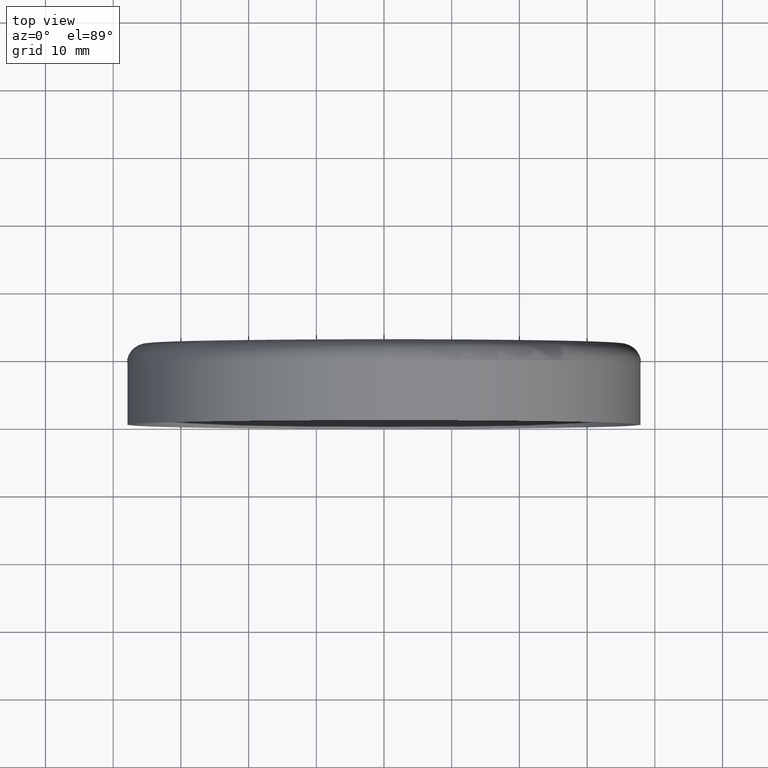
[diagram: clean part render]
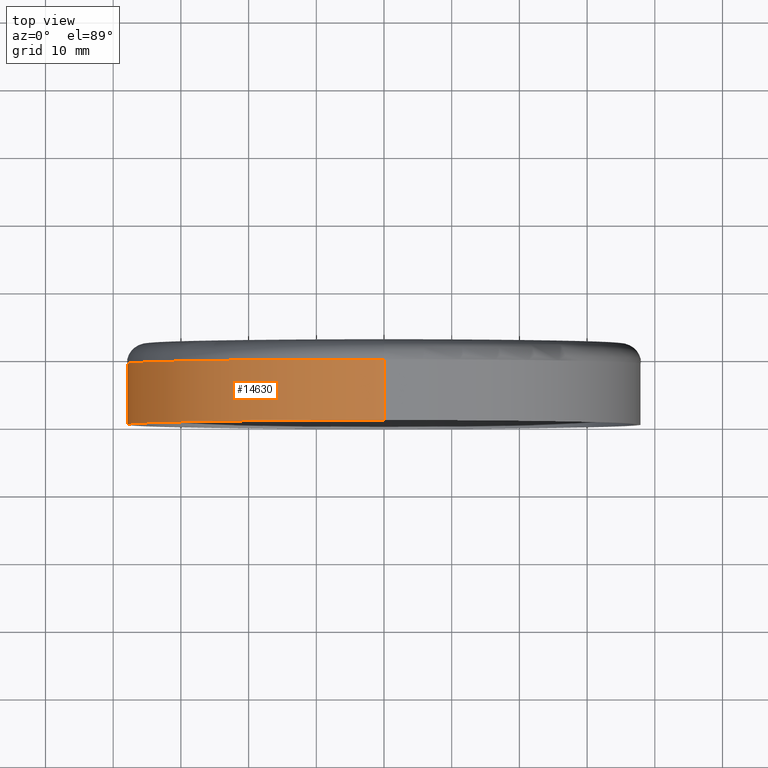
[diagram: same view with one face highlighted and labeled with its STEP entity id]
A machine part, top view. The second image highlights one B-rep face of the part: STEP entity #14630.
In plain terms, the highlighted cylindrical surface (partial cylindrical patch) has radius 38 mm, axis along (-0, -1, -0).
Its self-contained STEP definition (entity closure, byte-faithful):
#825 = AXIS2_PLACEMENT_3D ( 'NONE', #11234, #2974, #9021 ) ;
#1364 = CARTESIAN_POINT ( 'NONE',  ( 0.000000000000000000, 9.000000000000001776, 0.000000000000000000 ) ) ;
#1651 = VERTEX_POINT ( 'NONE', #11176 ) ;
#1679 = EDGE_CURVE ( 'NONE', #2241, #11980, #11736, .T. ) ;
#1901 = CARTESIAN_POINT ( 'NONE',  ( 0.000000000000000000, 0.000000000000000000, -38.00000000000000711 ) ) ;
#2046 = EDGE_CURVE ( 'NONE', #12601, #1651, #13607, .T. ) ;
#2131 = CARTESIAN_POINT ( 'NONE',  ( 4.653657836759942730E-15, 0.000000000000000000, 38.00000000000000711 ) ) ;
#2241 = VERTEX_POINT ( 'NONE', #11324 ) ;
#2974 = DIRECTION ( 'NONE',  ( -0.000000000000000000, -1.000000000000000000, -0.000000000000000000 ) ) ;
#3198 = ORIENTED_EDGE ( 'NONE', *, *, #2046, .T. ) ;
#3996 = CYLINDRICAL_SURFACE ( 'NONE', #9119, 38.00000000000000711 ) ;
#5046 = ORIENTED_EDGE ( 'NONE', *, *, #7182, .T. ) ;
#5067 = ORIENTED_EDGE ( 'NONE', *, *, #6805, .F. ) ;
#5630 = ORIENTED_EDGE ( 'NONE', *, *, #1679, .F. ) ;
#5901 = CARTESIAN_POINT ( 'NONE',  ( 0.000000000000000000, 0.000000000000000000, -38.00000000000000711 ) ) ;
#6355 = DIRECTION ( 'NONE',  ( 0.000000000000000000, 0.000000000000000000, -1.000000000000000000 ) ) ;
#6805 = EDGE_CURVE ( 'NONE', #12601, #2241, #10066, .T. ) ;
#7182 = EDGE_CURVE ( 'NONE', #1651, #11980, #15474, .T. ) ;
#8144 = DIRECTION ( 'NONE',  ( -0.000000000000000000, -1.000000000000000000, -0.000000000000000000 ) ) ;
#9021 = DIRECTION ( 'NONE',  ( 0.000000000000000000, 0.000000000000000000, -1.000000000000000000 ) ) ;
#9119 = AXIS2_PLACEMENT_3D ( 'NONE', #13647, #12444, #6355 ) ;
#9356 = AXIS2_PLACEMENT_3D ( 'NONE', #1364, #9849, #14522 ) ;
#9586 = FACE_OUTER_BOUND ( 'NONE', #14798, .T. ) ;
#9849 = DIRECTION ( 'NONE',  ( -0.000000000000000000, -1.000000000000000000, -0.000000000000000000 ) ) ;
#10066 = LINE ( 'NONE', #2131, #10804 ) ;
#10431 = VECTOR ( 'NONE', #13937, 1000.000000000000000 ) ;
#10804 = VECTOR ( 'NONE', #8144, 1000.000000000000000 ) ;
#11176 = CARTESIAN_POINT ( 'NONE',  ( 0.000000000000000000, 9.000000000000001776, -38.00000000000000711 ) ) ;
#11234 = CARTESIAN_POINT ( 'NONE',  ( 0.000000000000000000, 0.000000000000000000, 0.000000000000000000 ) ) ;
#11324 = CARTESIAN_POINT ( 'NONE',  ( 4.653657836759942730E-15, 0.000000000000000000, 38.00000000000000711 ) ) ;
#11736 = CIRCLE ( 'NONE', #825, 38.00000000000000711 ) ;
#11980 = VERTEX_POINT ( 'NONE', #5901 ) ;
#12444 = DIRECTION ( 'NONE',  ( -0.000000000000000000, -1.000000000000000000, -0.000000000000000000 ) ) ;
#12601 = VERTEX_POINT ( 'NONE', #14858 ) ;
#13607 = CIRCLE ( 'NONE', #9356, 38.00000000000000711 ) ;
#13647 = CARTESIAN_POINT ( 'NONE',  ( 0.000000000000000000, 0.000000000000000000, 0.000000000000000000 ) ) ;
#13937 = DIRECTION ( 'NONE',  ( -0.000000000000000000, -1.000000000000000000, -0.000000000000000000 ) ) ;
#14522 = DIRECTION ( 'NONE',  ( 0.000000000000000000, 0.000000000000000000, -1.000000000000000000 ) ) ;
#14630 = ADVANCED_FACE ( 'NONE', ( #9586 ), #3996, .T. ) ;
#14798 = EDGE_LOOP ( 'NONE', ( #5067, #3198, #5046, #5630 ) ) ;
#14858 = CARTESIAN_POINT ( 'NONE',  ( 4.653657836759942730E-15, 9.000000000000001776, 38.00000000000000711 ) ) ;
#15474 = LINE ( 'NONE', #1901, #10431 ) ;